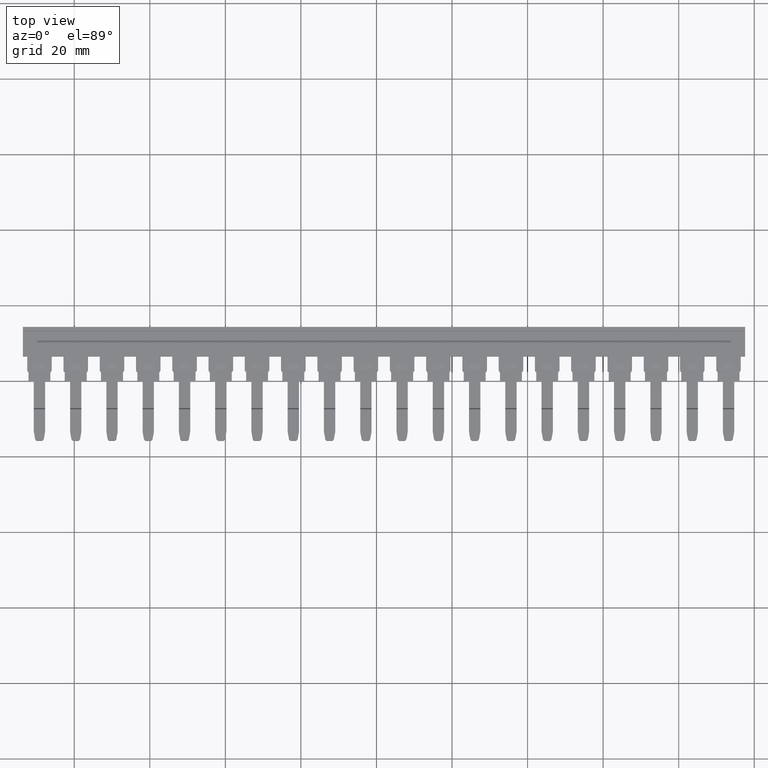
[diagram: clean part render]
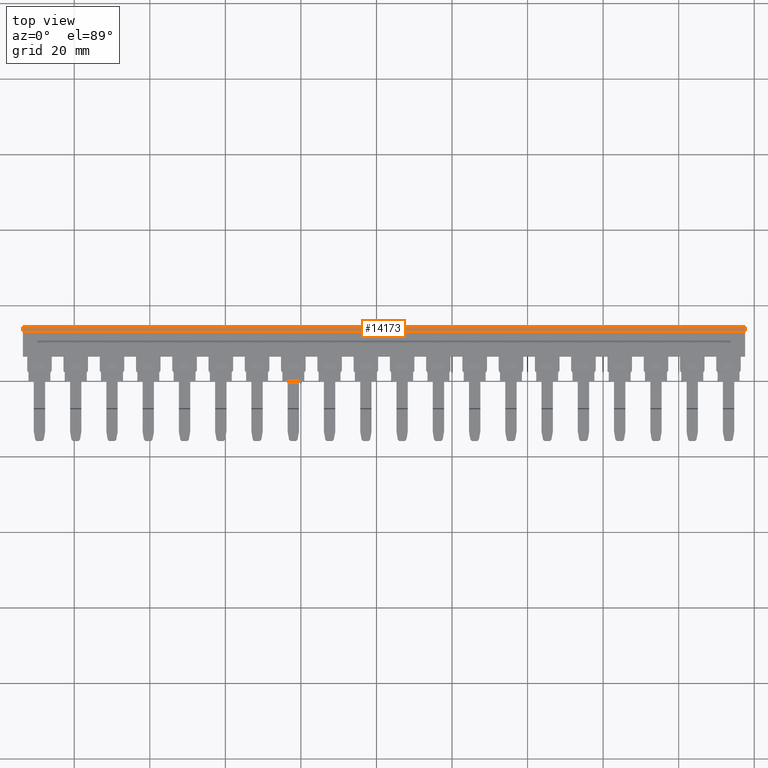
[diagram: same view with one face highlighted and labeled with its STEP entity id]
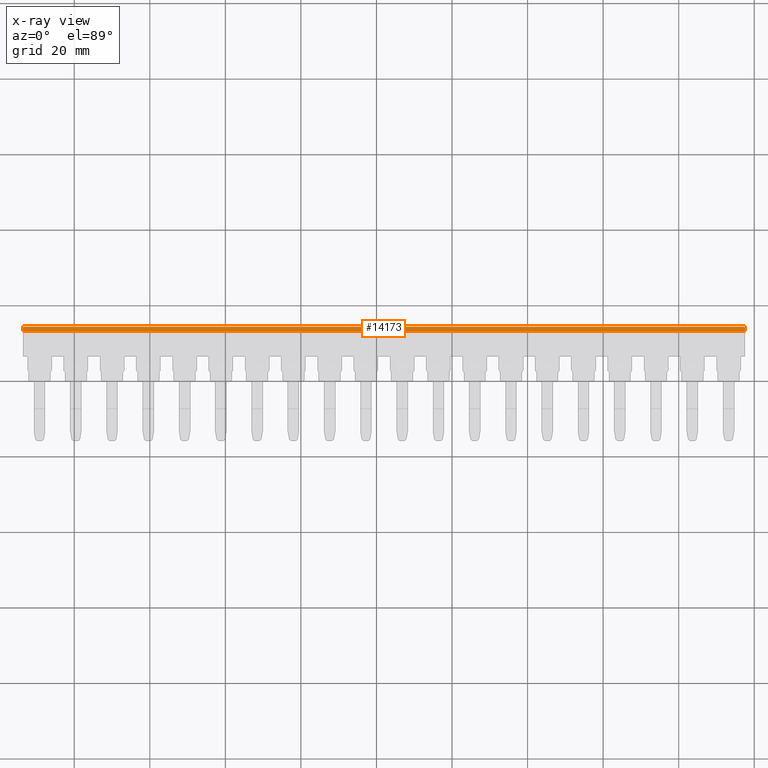
[diagram: x-ray of the same camera — body ghosted, the highlighted face saturated]
A machine part, top view. The second image highlights one B-rep face of the part: STEP entity #14173.
The next image is the same camera in x-ray: the body ghosted, the highlighted face saturated — about 0% of this face is hidden behind the body in this view.
In plain terms, the highlighted planar face has unit normal (0, 0, 1).
Its self-contained STEP definition (entity closure, byte-faithful):
#81 = VECTOR ( 'NONE', #15215, 1000.000000000000000 ) ;
#89 = VECTOR ( 'NONE', #15142, 1000.000000000000000 ) ;
#143 = VECTOR ( 'NONE', #15262, 1000.000000000000000 ) ;
#2502 = ORIENTED_EDGE ( 'NONE', *, *, #12922, .T. ) ;
#2561 = ORIENTED_EDGE ( 'NONE', *, *, #13015, .T. ) ;
#2566 = ORIENTED_EDGE ( 'NONE', *, *, #12993, .T. ) ;
#2606 = ORIENTED_EDGE ( 'NONE', *, *, #18509, .F. ) ;
#5295 = VECTOR ( 'NONE', #19020, 1000.000000000000000 ) ;
#6014 = VERTEX_POINT ( 'NONE', #11148 ) ;
#6074 = VERTEX_POINT ( 'NONE', #11193 ) ;
#6133 = VERTEX_POINT ( 'NONE', #11179 ) ;
#6155 = VERTEX_POINT ( 'NONE', #11271 ) ;
#11148 = CARTESIAN_POINT ( 'NONE',  ( 1157.594465032600300, 673.0878760720547700, 3.750000000000000000 ) ) ;
#11179 = CARTESIAN_POINT ( 'NONE',  ( 1157.594465032600300, 674.2878760720548100, 3.750000000000000000 ) ) ;
#11193 = CARTESIAN_POINT ( 'NONE',  ( 966.3944708023301500, 673.0878760720547700, 3.750000000000000000 ) ) ;
#11271 = CARTESIAN_POINT ( 'NONE',  ( 966.3944708023301500, 674.2878760720548100, 3.750000000000000000 ) ) ;
#12922 = EDGE_CURVE ( 'NONE', #6014, #6133, #15145, .T. ) ;
#12993 = EDGE_CURVE ( 'NONE', #6133, #6155, #15213, .T. ) ;
#13015 = EDGE_CURVE ( 'NONE', #6155, #6074, #15253, .T. ) ;
#14173 = ADVANCED_FACE ( 'NONE', ( #19141 ), #19140, .T. ) ;
#15128 = CARTESIAN_POINT ( 'NONE',  ( 1157.594465032600300, 673.0878760720547700, 3.750000000000000000 ) ) ;
#15142 = DIRECTION ( 'NONE',  ( -0.0000000000000000000, 1.000000000000000000, 0.0000000000000000000 ) ) ;
#15145 = LINE ( 'NONE', #15128, #89 ) ;
#15199 = CARTESIAN_POINT ( 'NONE',  ( 1129.594470802330100, 674.2878760720548100, 3.750000000000000000 ) ) ;
#15213 = LINE ( 'NONE', #15199, #81 ) ;
#15215 = DIRECTION ( 'NONE',  ( -1.000000000000000000, -0.0000000000000000000, -0.0000000000000000000 ) ) ;
#15253 = LINE ( 'NONE', #15278, #143 ) ;
#15262 = DIRECTION ( 'NONE',  ( -0.0000000000000000000, -1.000000000000000000, -0.0000000000000000000 ) ) ;
#15278 = CARTESIAN_POINT ( 'NONE',  ( 966.3944708023301500, 666.6212584401425800, 3.750000000000000000 ) ) ;
#18509 = EDGE_CURVE ( 'NONE', #6014, #6074, #19032, .T. ) ;
#19011 = CARTESIAN_POINT ( 'NONE',  ( 1129.594470802330100, 673.0878760720547700, 3.750000000000000000 ) ) ;
#19020 = DIRECTION ( 'NONE',  ( -1.000000000000000000, -0.0000000000000000000, -0.0000000000000000000 ) ) ;
#19032 = LINE ( 'NONE', #19011, #5295 ) ;
#19140 = PLANE ( 'NONE',  #24268 ) ;
#19141 = FACE_OUTER_BOUND ( 'NONE', #24833, .T. ) ;
#19201 = CARTESIAN_POINT ( 'NONE',  ( 1129.594470802330100, 673.0878760720547700, 3.750000000000000000 ) ) ;
#19202 = DIRECTION ( 'NONE',  ( 0.0000000000000000000, 0.0000000000000000000, 1.000000000000000000 ) ) ;
#19210 = DIRECTION ( 'NONE',  ( 1.000000000000000000, 0.0000000000000000000, -0.0000000000000000000 ) ) ;
#24268 = AXIS2_PLACEMENT_3D ( 'NONE', #19201, #19202, #19210 ) ;
#24833 = EDGE_LOOP ( 'NONE', ( #2566, #2561, #2606, #2502 ) ) ;